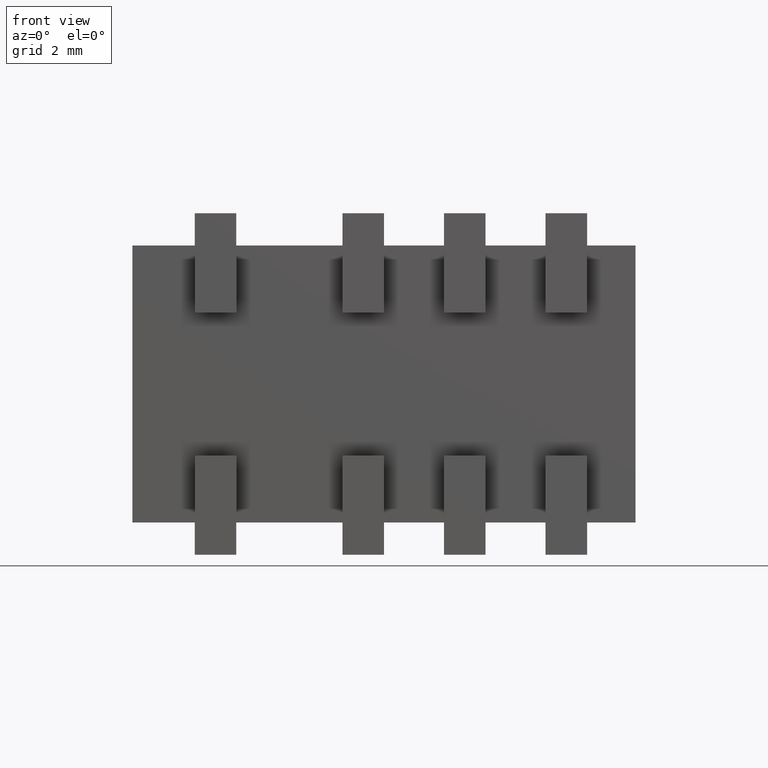
[diagram: clean part render]
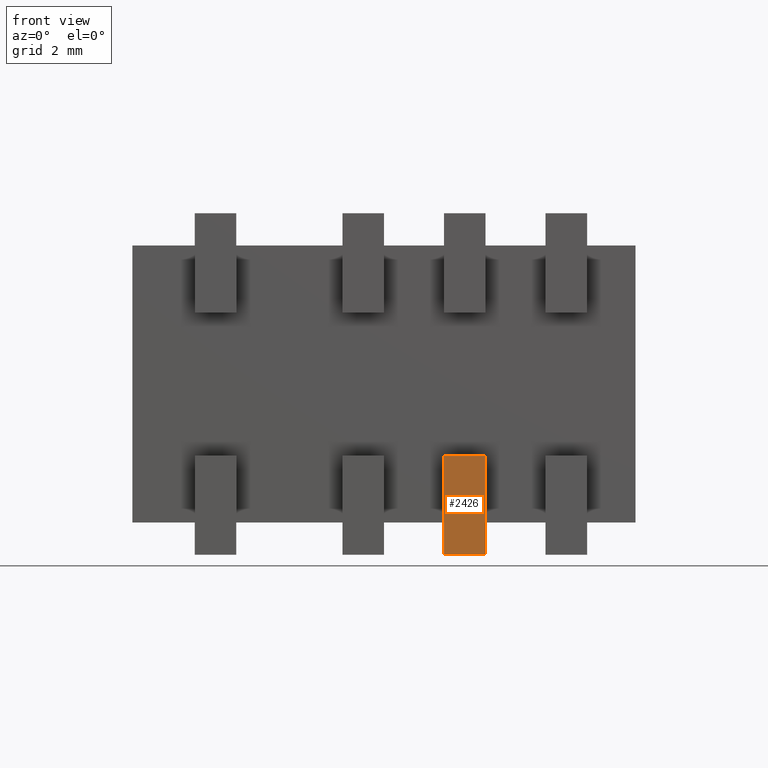
[diagram: same view with one face highlighted and labeled with its STEP entity id]
A machine part, front view. The second image highlights one B-rep face of the part: STEP entity #2426.
In plain terms, the highlighted planar face has unit normal (0, 1, -0).
Its self-contained STEP definition (entity closure, byte-faithful):
#15 = VERTEX_POINT ( 'NONE', #2954 ) ;
#251 = VECTOR ( 'NONE', #2610, 1000.000000000000000 ) ;
#287 = DIRECTION ( 'NONE',  ( 1.000000000000000000, 0.0000000000000000000, 0.0000000000000000000 ) ) ;
#504 = LINE ( 'NONE', #4108, #2205 ) ;
#619 = CARTESIAN_POINT ( 'NONE',  ( 6.750000000000000000, -0.6999999999999997300, -4.549999999999999800 ) ) ;
#709 = EDGE_LOOP ( 'NONE', ( #1910, #852, #1321, #761 ) ) ;
#719 = DIRECTION ( 'NONE',  ( 0.0000000000000000000, 5.042800802258161100E-017, 1.000000000000000000 ) ) ;
#742 = CARTESIAN_POINT ( 'NONE',  ( 6.750000000000000000, -0.6999999999999997300, -4.549999999999999800 ) ) ;
#759 = DIRECTION ( 'NONE',  ( 0.0000000000000000000, 1.000000000000000000, -5.042800802258160500E-017 ) ) ;
#761 = ORIENTED_EDGE ( 'NONE', *, *, #2375, .F. ) ;
#852 = ORIENTED_EDGE ( 'NONE', *, *, #2124, .T. ) ;
#1229 = CARTESIAN_POINT ( 'NONE',  ( 6.750000000000000000, -0.6999999999999998400, -6.700000000000000200 ) ) ;
#1271 = DIRECTION ( 'NONE',  ( 0.0000000000000000000, 5.042800802258161100E-017, 1.000000000000000000 ) ) ;
#1279 = AXIS2_PLACEMENT_3D ( 'NONE', #2792, #759, #1721 ) ;
#1321 = ORIENTED_EDGE ( 'NONE', *, *, #1638, .F. ) ;
#1358 = LINE ( 'NONE', #1229, #251 ) ;
#1638 = EDGE_CURVE ( 'NONE', #3811, #1853, #3076, .T. ) ;
#1721 = DIRECTION ( 'NONE',  ( 0.0000000000000000000, 5.042800802258160500E-017, 1.000000000000000000 ) ) ;
#1787 = CARTESIAN_POINT ( 'NONE',  ( 7.649999999999999500, -0.6999999999999997300, -4.549999999999999800 ) ) ;
#1853 = VERTEX_POINT ( 'NONE', #1787 ) ;
#1903 = VERTEX_POINT ( 'NONE', #2914 ) ;
#1910 = ORIENTED_EDGE ( 'NONE', *, *, #1965, .T. ) ;
#1965 = EDGE_CURVE ( 'NONE', #1903, #15, #1358, .T. ) ;
#2124 = EDGE_CURVE ( 'NONE', #15, #1853, #504, .T. ) ;
#2155 = VECTOR ( 'NONE', #719, 1000.000000000000000 ) ;
#2205 = VECTOR ( 'NONE', #1271, 1000.000000000000000 ) ;
#2375 = EDGE_CURVE ( 'NONE', #1903, #3811, #3104, .T. ) ;
#2426 = ADVANCED_FACE ( 'NONE', ( #3812 ), #4246, .F. ) ;
#2610 = DIRECTION ( 'NONE',  ( 1.000000000000000000, 0.0000000000000000000, 0.0000000000000000000 ) ) ;
#2792 = CARTESIAN_POINT ( 'NONE',  ( 6.750000000000000000, -0.6999999999999997300, -4.549999999999999800 ) ) ;
#2914 = CARTESIAN_POINT ( 'NONE',  ( 6.750000000000000000, -0.6999999999999998400, -6.700000000000000200 ) ) ;
#2954 = CARTESIAN_POINT ( 'NONE',  ( 7.649999999999999500, -0.6999999999999998400, -6.700000000000000200 ) ) ;
#3076 = LINE ( 'NONE', #3800, #3671 ) ;
#3104 = LINE ( 'NONE', #742, #2155 ) ;
#3671 = VECTOR ( 'NONE', #287, 1000.000000000000000 ) ;
#3800 = CARTESIAN_POINT ( 'NONE',  ( 6.750000000000000000, -0.6999999999999997300, -4.549999999999999800 ) ) ;
#3811 = VERTEX_POINT ( 'NONE', #619 ) ;
#3812 = FACE_OUTER_BOUND ( 'NONE', #709, .T. ) ;
#4108 = CARTESIAN_POINT ( 'NONE',  ( 7.649999999999999500, -0.6999999999999997300, -4.549999999999999800 ) ) ;
#4246 = PLANE ( 'NONE',  #1279 ) ;